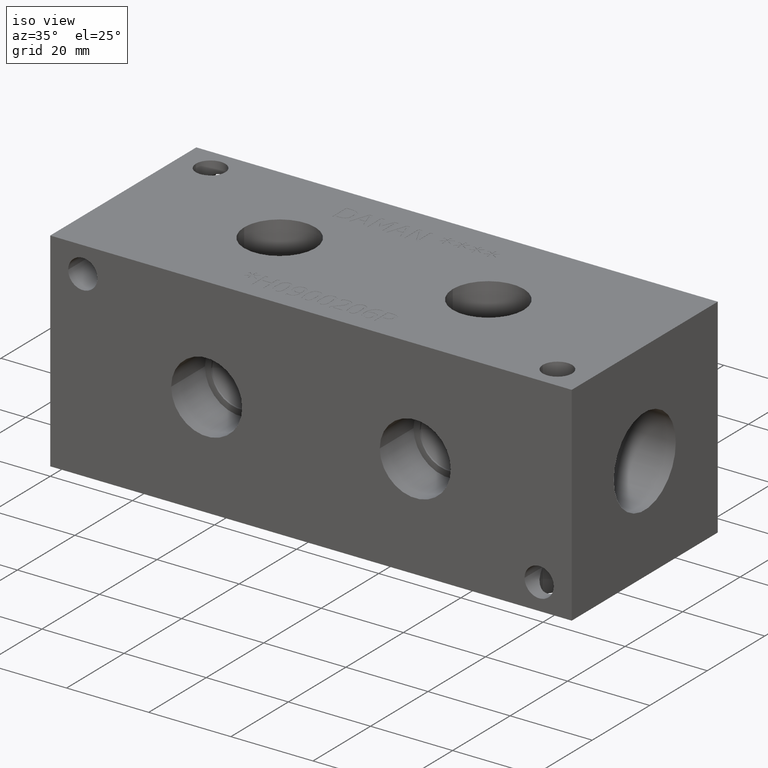
[diagram: clean part render]
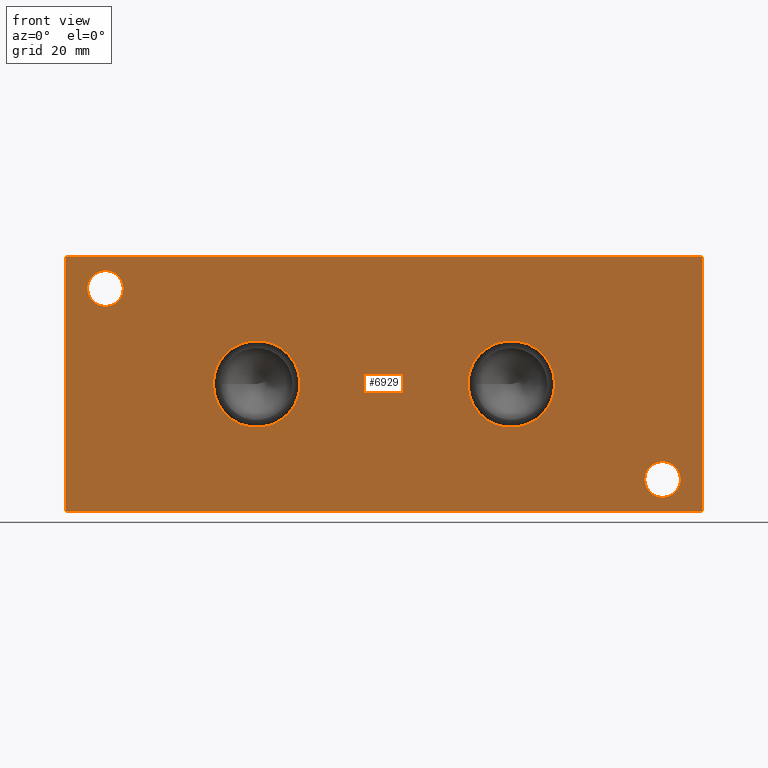
[diagram: tour spotlight — one face highlighted and labeled with its STEP entity id]
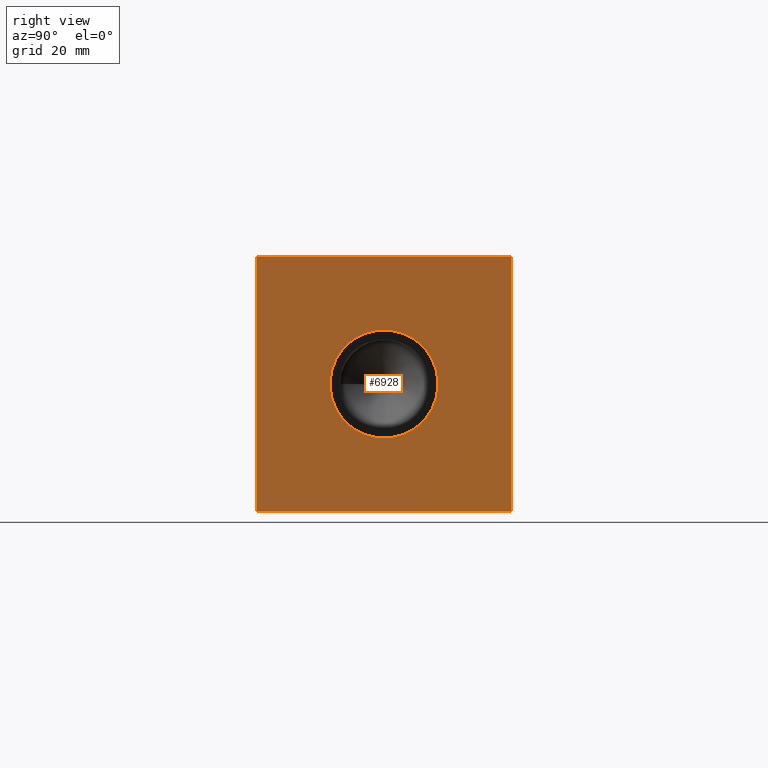
[diagram: tour spotlight — one face highlighted and labeled with its STEP entity id]
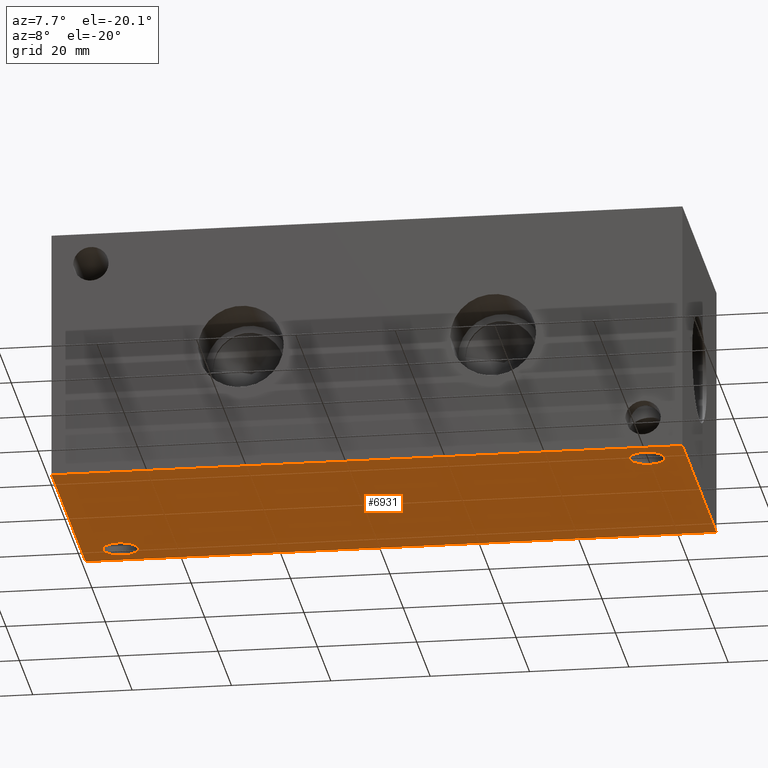
[diagram: tour spotlight — one face highlighted and labeled with its STEP entity id]
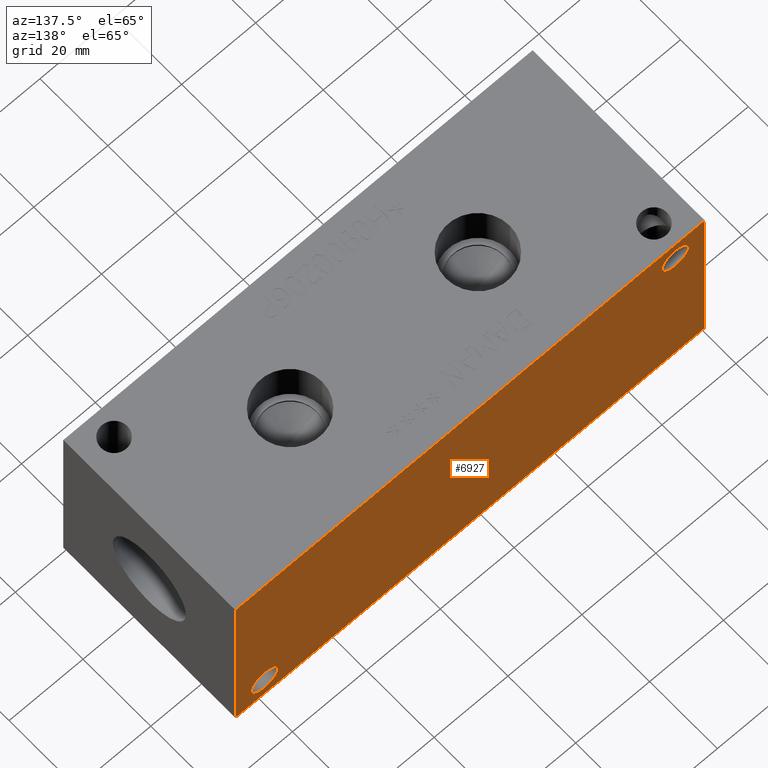
[diagram: tour spotlight — one face highlighted and labeled with its STEP entity id]
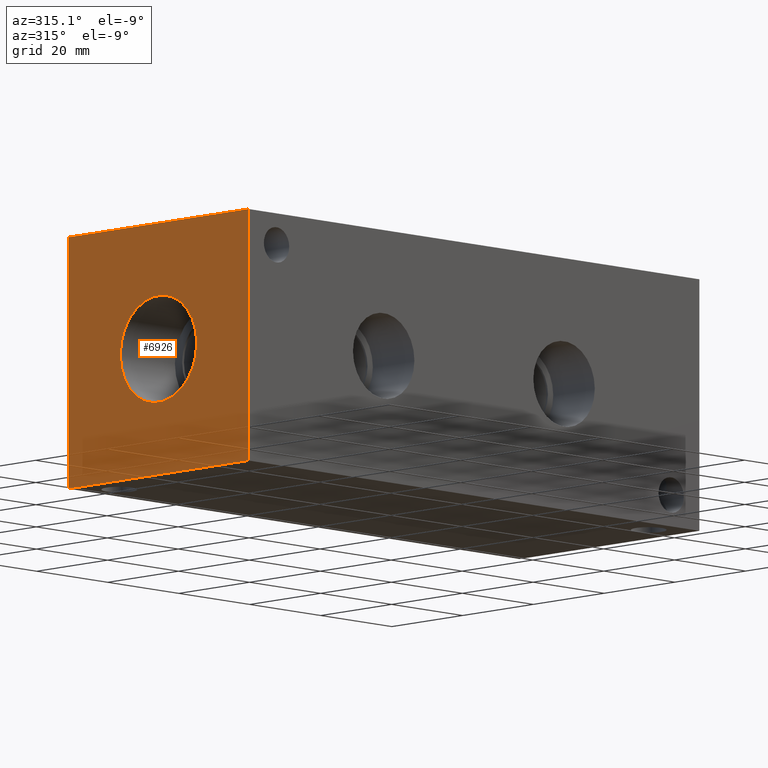
[diagram: tour spotlight — one face highlighted and labeled with its STEP entity id]
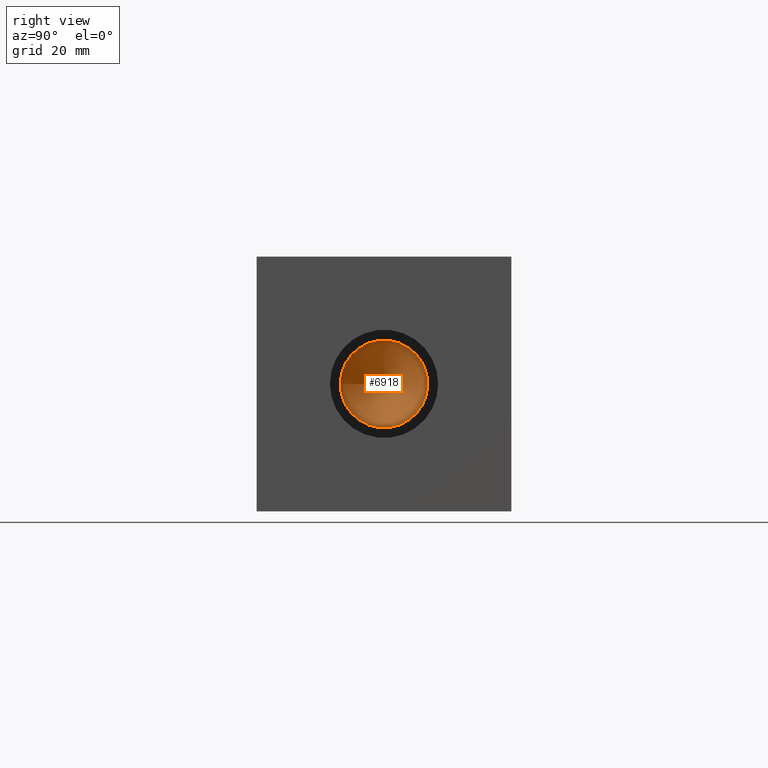
[diagram: tour spotlight — one face highlighted and labeled with its STEP entity id]
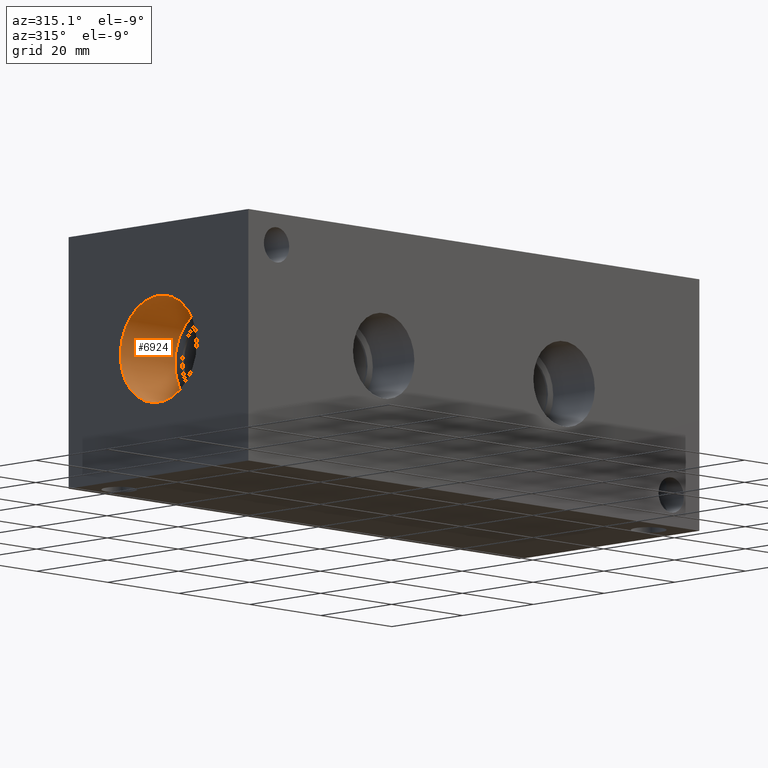
[diagram: tour spotlight — one face highlighted and labeled with its STEP entity id]
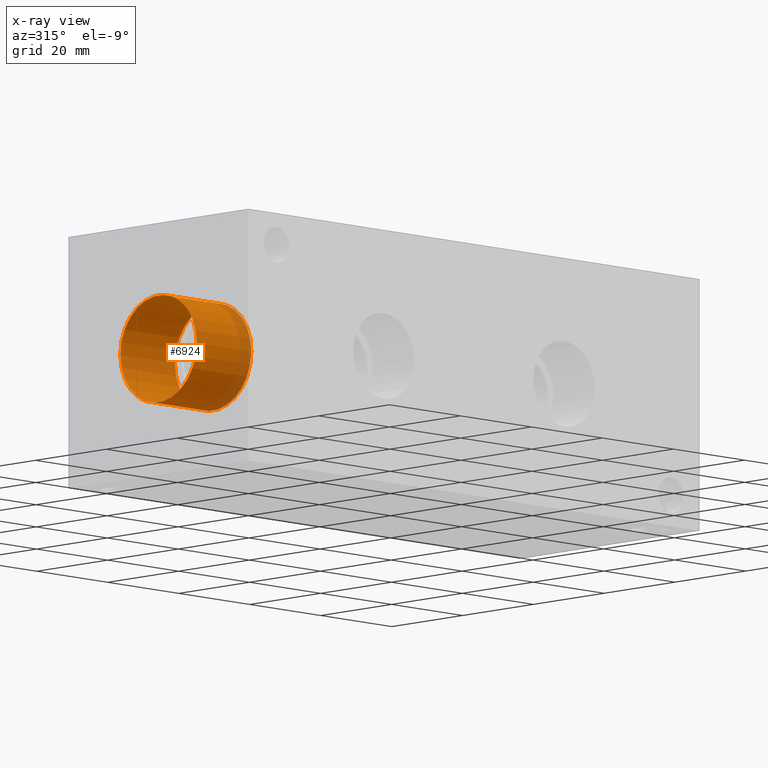
[diagram: x-ray of the same camera — body ghosted, this tour face saturated]
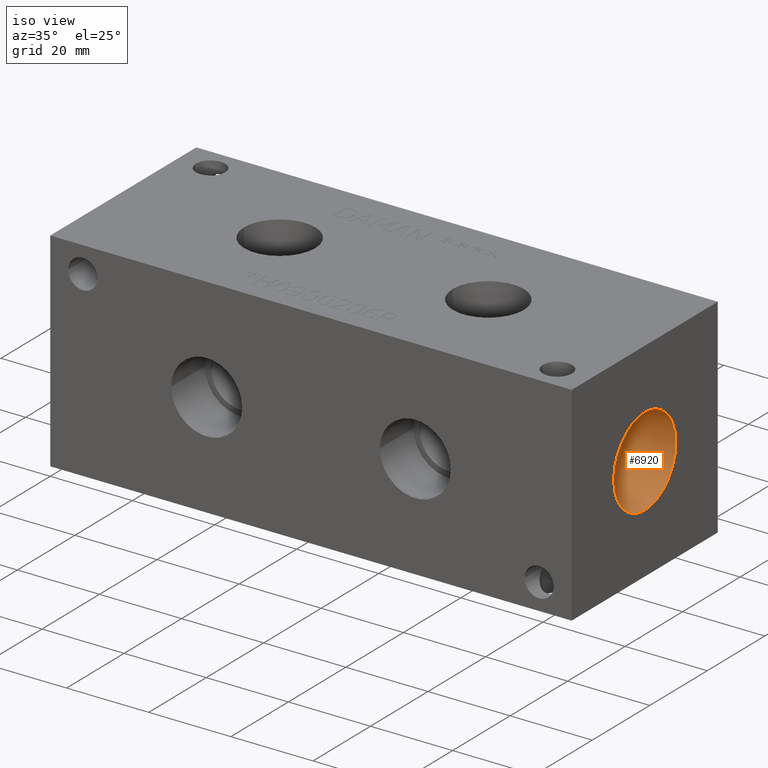
[diagram: tour spotlight — one face highlighted and labeled with its STEP entity id]
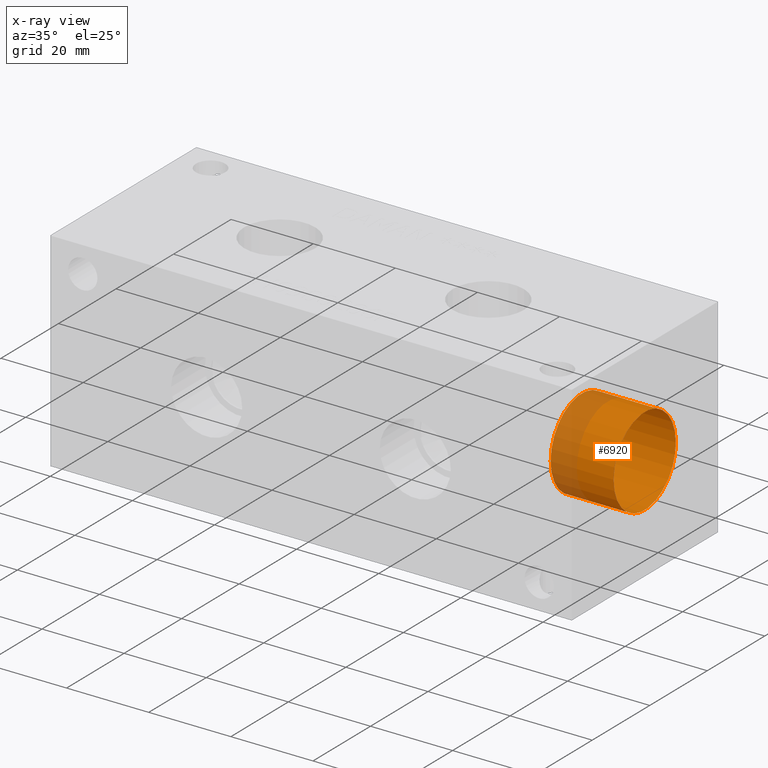
[diagram: x-ray of the same camera — body ghosted, this tour face saturated]
A machine part: a face-by-face anatomy tour. The part has 351 B-rep faces; the first image is the clean iso view, then the 8 largest visible faces are spotlighted one at a time (largest first), each with its STEP entity span.

Face 1 — front view, entity #6929. In plain terms, the highlighted planar face has unit normal (0, -1, 0).
Definition (entity closure, byte-faithful):
#61=CIRCLE('',#7162,8.6487);
#62=CIRCLE('',#7163,8.6487);
#68=CIRCLE('',#7173,8.6487);
#69=CIRCLE('',#7174,8.6487);
#70=CIRCLE('',#7177,3.5687);
#71=CIRCLE('',#7178,3.5687);
#73=CIRCLE('',#7186,3.5687);
#74=CIRCLE('',#7187,3.5687);
#145=FACE_BOUND('',#1106,.T.);
#146=FACE_BOUND('',#1107,.T.);
#147=FACE_BOUND('',#1108,.T.);
#148=FACE_BOUND('',#1109,.T.);
#360=PLANE('',#7243);
#711=FACE_OUTER_BOUND('',#1105,.T.);
#1105=EDGE_LOOP('',(#6143,#6144,#6145,#6146));
#1106=EDGE_LOOP('',(#6147,#6148));
#1107=EDGE_LOOP('',(#6149,#6150));
#1108=EDGE_LOOP('',(#6151,#6152));
#1109=EDGE_LOOP('',(#6153,#6154));
#1363=LINE('',#10809,#2027);
#1771=LINE('',#11911,#2435);
#1776=LINE('',#11920,#2440);
#1777=LINE('',#11922,#2441);
#2027=VECTOR('',#7615,10.);
#2435=VECTOR('',#8495,10.);
#2440=VECTOR('',#8504,10.);
#2441=VECTOR('',#8507,10.);
#2974=VERTEX_POINT('',#10807);
#2975=VERTEX_POINT('',#10808);
#3254=VERTEX_POINT('',#11754);
#3255=VERTEX_POINT('',#11755);
#3262=VERTEX_POINT('',#11776);
#3263=VERTEX_POINT('',#11777);
#3264=VERTEX_POINT('',#11784);
#3265=VERTEX_POINT('',#11785);
#3269=VERTEX_POINT('',#11800);
#3270=VERTEX_POINT('',#11801);
#3305=VERTEX_POINT('',#11909);
#3307=VERTEX_POINT('',#11918);
#3767=EDGE_CURVE('',#2974,#2975,#1363,.T.);
#4178=EDGE_CURVE('',#3254,#3255,#61,.T.);
#4179=EDGE_CURVE('',#3255,#3254,#62,.T.);
#4188=EDGE_CURVE('',#3262,#3263,#68,.T.);
#4189=EDGE_CURVE('',#3263,#3262,#69,.T.);
#4192=EDGE_CURVE('',#3264,#3265,#70,.T.);
#4193=EDGE_CURVE('',#3265,#3264,#71,.T.);
#4201=EDGE_CURVE('',#3269,#3270,#73,.T.);
#4202=EDGE_CURVE('',#3270,#3269,#74,.T.);
#4253=EDGE_CURVE('',#3305,#2974,#1771,.T.);
#4258=EDGE_CURVE('',#3307,#2975,#1776,.T.);
#4259=EDGE_CURVE('',#3305,#3307,#1777,.T.);
#6143=ORIENTED_EDGE('',*,*,#4259,.T.);
#6144=ORIENTED_EDGE('',*,*,#4258,.T.);
#6145=ORIENTED_EDGE('',*,*,#3767,.F.);
#6146=ORIENTED_EDGE('',*,*,#4253,.F.);
#6147=ORIENTED_EDGE('',*,*,#4178,.T.);
#6148=ORIENTED_EDGE('',*,*,#4179,.T.);
#6149=ORIENTED_EDGE('',*,*,#4188,.T.);
#6150=ORIENTED_EDGE('',*,*,#4189,.T.);
#6151=ORIENTED_EDGE('',*,*,#4192,.T.);
#6152=ORIENTED_EDGE('',*,*,#4193,.T.);
#6153=ORIENTED_EDGE('',*,*,#4201,.T.);
#6154=ORIENTED_EDGE('',*,*,#4202,.T.);
#6929=ADVANCED_FACE('',(#711,#145,#146,#147,#148),#360,.T.);
#7162=AXIS2_PLACEMENT_3D('',#11756,#8311,#8312);
#7163=AXIS2_PLACEMENT_3D('',#11757,#8313,#8314);
#7173=AXIS2_PLACEMENT_3D('',#11778,#8336,#8337);
#7174=AXIS2_PLACEMENT_3D('',#11779,#8338,#8339);
#7177=AXIS2_PLACEMENT_3D('',#11786,#8346,#8347);
#7178=AXIS2_PLACEMENT_3D('',#11787,#8348,#8349);
#7186=AXIS2_PLACEMENT_3D('',#11802,#8366,#8367);
#7187=AXIS2_PLACEMENT_3D('',#11803,#8368,#8369);
#7243=AXIS2_PLACEMENT_3D('',#11921,#8505,#8506);
#7615=DIRECTION('',(1.,0.,0.));
#8311=DIRECTION('center_axis',(0.,1.,0.));
#8312=DIRECTION('ref_axis',(1.,0.,0.));
#8313=DIRECTION('center_axis',(0.,1.,0.));
#8314=DIRECTION('ref_axis',(1.,0.,0.));
#8336=DIRECTION('center_axis',(0.,1.,0.));
#8337=DIRECTION('ref_axis',(1.,0.,0.));
#8338=DIRECTION('center_axis',(0.,1.,0.));
#8339=DIRECTION('ref_axis',(1.,0.,0.));
#8346=DIRECTION('center_axis',(0.,1.,0.));
#8347=DIRECTION('ref_axis',(1.,0.,0.));
#8348=DIRECTION('center_axis',(0.,1.,0.));
#8349=DIRECTION('ref_axis',(1.,0.,0.));
#8366=DIRECTION('center_axis',(0.,1.,0.));
#8367=DIRECTION('ref_axis',(1.,0.,0.));
#8368=DIRECTION('center_axis',(0.,1.,0.));
#8369=DIRECTION('ref_axis',(1.,0.,0.));
#8495=DIRECTION('',(0.,0.,1.));
#8504=DIRECTION('',(0.,0.,1.));
#8505=DIRECTION('center_axis',(0.,-1.,0.));
#8506=DIRECTION('ref_axis',(1.,0.,0.));
#8507=DIRECTION('',(1.,0.,0.));
#10807=CARTESIAN_POINT('',(0.,0.,50.8));
#10808=CARTESIAN_POINT('',(127.,0.,50.8));
#10809=CARTESIAN_POINT('',(0.,0.,50.8));
#11754=CARTESIAN_POINT('',(46.7487,0.,25.4));
#11755=CARTESIAN_POINT('',(29.4513,0.,25.4));
#11756=CARTESIAN_POINT('Origin',(38.1,0.,25.4));
#11757=CARTESIAN_POINT('Origin',(38.1,0.,25.4));
#11776=CARTESIAN_POINT('',(97.5487,0.,25.4));
#11777=CARTESIAN_POINT('',(80.2513,0.,25.4));
#11778=CARTESIAN_POINT('Origin',(88.9,0.,25.4));
#11779=CARTESIAN_POINT('Origin',(88.9,0.,25.4));
#11784=CARTESIAN_POINT('',(11.4935,0.,44.45));
#11785=CARTESIAN_POINT('',(4.3561,-1.77635683940025E-14,44.45));
#11786=CARTESIAN_POINT('Origin',(7.9248,0.,44.45));
#11787=CARTESIAN_POINT('Origin',(7.9248,0.,44.45));
#11800=CARTESIAN_POINT('',(122.6439,0.,6.35));
#11801=CARTESIAN_POINT('',(115.5065,-1.77635683940025E-14,6.35));
#11802=CARTESIAN_POINT('Origin',(119.0752,0.,6.35));
#11803=CARTESIAN_POINT('Origin',(119.0752,0.,6.35));
#11909=CARTESIAN_POINT('',(0.,0.,0.));
#11911=CARTESIAN_POINT('',(0.,0.,0.));
#11918=CARTESIAN_POINT('',(127.,0.,0.));
#11920=CARTESIAN_POINT('',(127.,0.,0.));
#11921=CARTESIAN_POINT('Origin',(0.,0.,0.));
#11922=CARTESIAN_POINT('',(0.,0.,0.));

Face 2 — right view, entity #6928. In plain terms, the highlighted planar face has unit normal (1, 0, 0).
Definition (entity closure, byte-faithful):
#93=CIRCLE('',#7226,10.795);
#94=CIRCLE('',#7227,10.795);
#144=FACE_BOUND('',#1104,.T.);
#359=PLANE('',#7242);
#710=FACE_OUTER_BOUND('',#1103,.T.);
#1103=EDGE_LOOP('',(#6137,#6138,#6139,#6140));
#1104=EDGE_LOOP('',(#6141,#6142));
#1364=LINE('',#10811,#2028);
#1774=LINE('',#11916,#2438);
#1775=LINE('',#11919,#2439);
#1776=LINE('',#11920,#2440);
#2028=VECTOR('',#7616,10.);
#2438=VECTOR('',#8500,10.);
#2439=VECTOR('',#8503,10.);
#2440=VECTOR('',#8504,10.);
#2975=VERTEX_POINT('',#10808);
#2976=VERTEX_POINT('',#10810);
#3294=VERTEX_POINT('',#11878);
#3295=VERTEX_POINT('',#11879);
#3306=VERTEX_POINT('',#11914);
#3307=VERTEX_POINT('',#11918);
#3768=EDGE_CURVE('',#2975,#2976,#1364,.T.);
#4238=EDGE_CURVE('',#3294,#3295,#93,.T.);
#4239=EDGE_CURVE('',#3295,#3294,#94,.T.);
#4256=EDGE_CURVE('',#3306,#2976,#1774,.T.);
#4257=EDGE_CURVE('',#3307,#3306,#1775,.T.);
#4258=EDGE_CURVE('',#3307,#2975,#1776,.T.);
#6137=ORIENTED_EDGE('',*,*,#4257,.T.);
#6138=ORIENTED_EDGE('',*,*,#4256,.T.);
#6139=ORIENTED_EDGE('',*,*,#3768,.F.);
#6140=ORIENTED_EDGE('',*,*,#4258,.F.);
#6141=ORIENTED_EDGE('',*,*,#4238,.T.);
#6142=ORIENTED_EDGE('',*,*,#4239,.T.);
#6928=ADVANCED_FACE('',(#710,#144),#359,.T.);
#7226=AXIS2_PLACEMENT_3D('',#11880,#8459,#8460);
#7227=AXIS2_PLACEMENT_3D('',#11881,#8461,#8462);
#7242=AXIS2_PLACEMENT_3D('',#11917,#8501,#8502);
#7616=DIRECTION('',(0.,1.,0.));
#8459=DIRECTION('center_axis',(-1.,0.,0.));
#8460=DIRECTION('ref_axis',(0.,1.,0.));
#8461=DIRECTION('center_axis',(-1.,0.,0.));
#8462=DIRECTION('ref_axis',(0.,1.,0.));
#8500=DIRECTION('',(0.,0.,1.));
#8501=DIRECTION('center_axis',(1.,0.,0.));
#8502=DIRECTION('ref_axis',(0.,1.,0.));
#8503=DIRECTION('',(0.,1.,0.));
#8504=DIRECTION('',(0.,0.,1.));
#10808=CARTESIAN_POINT('',(127.,0.,50.8));
#10810=CARTESIAN_POINT('',(127.,50.8,50.8));
#10811=CARTESIAN_POINT('',(127.,0.,50.8));
#11878=CARTESIAN_POINT('',(127.,36.195,25.4));
#11879=CARTESIAN_POINT('',(127.,14.605,25.4));
#11880=CARTESIAN_POINT('Origin',(127.,25.4,25.4));
#11881=CARTESIAN_POINT('Origin',(127.,25.4,25.4));
#11914=CARTESIAN_POINT('',(127.,50.8,0.));
#11916=CARTESIAN_POINT('',(127.,50.8,0.));
#11917=CARTESIAN_POINT('Origin',(127.,0.,0.));
#11918=CARTESIAN_POINT('',(127.,0.,0.));
#11919=CARTESIAN_POINT('',(127.,0.,0.));
#11920=CARTESIAN_POINT('',(127.,0.,0.));

Face 3 — auxiliary view, entity #6931. In plain terms, the highlighted planar face has unit normal (0, 0, 1).
Definition (entity closure, byte-faithful):
#76=CIRCLE('',#7197,3.5687);
#77=CIRCLE('',#7199,3.5687);
#149=FACE_BOUND('',#1112,.T.);
#150=FACE_BOUND('',#1113,.T.);
#362=PLANE('',#7245);
#713=FACE_OUTER_BOUND('',#1111,.T.);
#1111=EDGE_LOOP('',(#6158,#6159,#6160,#6161));
#1112=EDGE_LOOP('',(#6162));
#1113=EDGE_LOOP('',(#6163));
#1770=LINE('',#11910,#2434);
#1773=LINE('',#11915,#2437);
#1775=LINE('',#11919,#2439);
#1777=LINE('',#11922,#2441);
#2434=VECTOR('',#8494,10.);
#2437=VECTOR('',#8499,10.);
#2439=VECTOR('',#8503,10.);
#2441=VECTOR('',#8507,10.);
#3274=VERTEX_POINT('',#11820);
#3275=VERTEX_POINT('',#11824);
#3304=VERTEX_POINT('',#11908);
#3305=VERTEX_POINT('',#11909);
#3306=VERTEX_POINT('',#11914);
#3307=VERTEX_POINT('',#11918);
#4213=EDGE_CURVE('',#3274,#3274,#76,.T.);
#4215=EDGE_CURVE('',#3275,#3275,#77,.T.);
#4252=EDGE_CURVE('',#3304,#3305,#1770,.T.);
#4255=EDGE_CURVE('',#3306,#3304,#1773,.T.);
#4257=EDGE_CURVE('',#3307,#3306,#1775,.T.);
#4259=EDGE_CURVE('',#3305,#3307,#1777,.T.);
#6158=ORIENTED_EDGE('',*,*,#4259,.F.);
#6159=ORIENTED_EDGE('',*,*,#4252,.F.);
#6160=ORIENTED_EDGE('',*,*,#4255,.F.);
#6161=ORIENTED_EDGE('',*,*,#4257,.F.);
#6162=ORIENTED_EDGE('',*,*,#4213,.T.);
#6163=ORIENTED_EDGE('',*,*,#4215,.T.);
#6931=ADVANCED_FACE('',(#713,#149,#150),#362,.F.);
#7197=AXIS2_PLACEMENT_3D('',#11822,#8393,#8394);
#7199=AXIS2_PLACEMENT_3D('',#11826,#8398,#8399);
#7245=AXIS2_PLACEMENT_3D('',#11924,#8510,#8511);
#8393=DIRECTION('center_axis',(0.,0.,1.));
#8394=DIRECTION('ref_axis',(1.,0.,0.));
#8398=DIRECTION('center_axis',(0.,0.,1.));
#8399=DIRECTION('ref_axis',(1.,0.,0.));
#8494=DIRECTION('',(0.,-1.,0.));
#8499=DIRECTION('',(-1.,0.,0.));
#8503=DIRECTION('',(0.,1.,0.));
#8507=DIRECTION('',(1.,0.,0.));
#8510=DIRECTION('center_axis',(0.,0.,1.));
#8511=DIRECTION('ref_axis',(1.,0.,0.));
#11820=CARTESIAN_POINT('',(4.3561,44.45,0.));
#11822=CARTESIAN_POINT('Origin',(7.9248,44.45,0.));
#11824=CARTESIAN_POINT('',(115.5065,6.35,0.));
#11826=CARTESIAN_POINT('Origin',(119.0752,6.35,0.));
#11908=CARTESIAN_POINT('',(0.,50.8,0.));
#11909=CARTESIAN_POINT('',(0.,0.,0.));
#11910=CARTESIAN_POINT('',(0.,50.8,0.));
#11914=CARTESIAN_POINT('',(127.,50.8,0.));
#11915=CARTESIAN_POINT('',(127.,50.8,0.));
#11918=CARTESIAN_POINT('',(127.,0.,0.));
#11919=CARTESIAN_POINT('',(127.,0.,0.));
#11922=CARTESIAN_POINT('',(0.,0.,0.));
#11924=CARTESIAN_POINT('Origin',(63.5,25.4,0.));

Face 4 — auxiliary view, entity #6927. In plain terms, the highlighted planar face has unit normal (0, 1, 0).
Definition (entity closure, byte-faithful):
#72=CIRCLE('',#7184,3.5687);
#75=CIRCLE('',#7193,3.5687);
#142=FACE_BOUND('',#1101,.T.);
#143=FACE_BOUND('',#1102,.T.);
#358=PLANE('',#7241);
#709=FACE_OUTER_BOUND('',#1100,.T.);
#1100=EDGE_LOOP('',(#6131,#6132,#6133,#6134));
#1101=EDGE_LOOP('',(#6135));
#1102=EDGE_LOOP('',(#6136));
#1365=LINE('',#10813,#2029);
#1772=LINE('',#11912,#2436);
#1773=LINE('',#11915,#2437);
#1774=LINE('',#11916,#2438);
#2029=VECTOR('',#7617,10.);
#2436=VECTOR('',#8496,10.);
#2437=VECTOR('',#8499,10.);
#2438=VECTOR('',#8500,10.);
#2976=VERTEX_POINT('',#10810);
#2977=VERTEX_POINT('',#10812);
#3268=VERTEX_POINT('',#11796);
#3273=VERTEX_POINT('',#11812);
#3304=VERTEX_POINT('',#11908);
#3306=VERTEX_POINT('',#11914);
#3769=EDGE_CURVE('',#2976,#2977,#1365,.T.);
#4200=EDGE_CURVE('',#3268,#3268,#72,.T.);
#4209=EDGE_CURVE('',#3273,#3273,#75,.T.);
#4254=EDGE_CURVE('',#3304,#2977,#1772,.T.);
#4255=EDGE_CURVE('',#3306,#3304,#1773,.T.);
#4256=EDGE_CURVE('',#3306,#2976,#1774,.T.);
#6131=ORIENTED_EDGE('',*,*,#4255,.T.);
#6132=ORIENTED_EDGE('',*,*,#4254,.T.);
#6133=ORIENTED_EDGE('',*,*,#3769,.F.);
#6134=ORIENTED_EDGE('',*,*,#4256,.F.);
#6135=ORIENTED_EDGE('',*,*,#4200,.T.);
#6136=ORIENTED_EDGE('',*,*,#4209,.T.);
#6927=ADVANCED_FACE('',(#709,#142,#143),#358,.T.);
#7184=AXIS2_PLACEMENT_3D('',#11798,#8362,#8363);
#7193=AXIS2_PLACEMENT_3D('',#11814,#8382,#8383);
#7241=AXIS2_PLACEMENT_3D('',#11913,#8497,#8498);
#7617=DIRECTION('',(-1.,0.,0.));
#8362=DIRECTION('center_axis',(0.,-1.,0.));
#8363=DIRECTION('ref_axis',(1.,0.,0.));
#8382=DIRECTION('center_axis',(0.,-1.,0.));
#8383=DIRECTION('ref_axis',(1.,0.,0.));
#8496=DIRECTION('',(0.,0.,1.));
#8497=DIRECTION('center_axis',(0.,1.,0.));
#8498=DIRECTION('ref_axis',(-1.,0.,0.));
#8499=DIRECTION('',(-1.,0.,0.));
#8500=DIRECTION('',(0.,0.,1.));
#10810=CARTESIAN_POINT('',(127.,50.8,50.8));
#10812=CARTESIAN_POINT('',(0.,50.8,50.8));
#10813=CARTESIAN_POINT('',(127.,50.8,50.8));
#11796=CARTESIAN_POINT('',(4.3561,50.8,44.45));
#11798=CARTESIAN_POINT('Origin',(7.9248,50.8,44.45));
#11812=CARTESIAN_POINT('',(115.5065,50.8,6.35));
#11814=CARTESIAN_POINT('Origin',(119.0752,50.8,6.35));
#11908=CARTESIAN_POINT('',(0.,50.8,0.));
#11912=CARTESIAN_POINT('',(0.,50.8,0.));
#11913=CARTESIAN_POINT('Origin',(127.,50.8,0.));
#11914=CARTESIAN_POINT('',(127.,50.8,0.));
#11915=CARTESIAN_POINT('',(127.,50.8,0.));
#11916=CARTESIAN_POINT('',(127.,50.8,0.));

Face 5 — auxiliary view, entity #6926. In plain terms, the highlighted planar face has unit normal (-1, 0, 0).
Definition (entity closure, byte-faithful):
#100=CIRCLE('',#7237,10.795);
#101=CIRCLE('',#7238,10.795);
#141=FACE_BOUND('',#1099,.T.);
#357=PLANE('',#7240);
#708=FACE_OUTER_BOUND('',#1098,.T.);
#1098=EDGE_LOOP('',(#6125,#6126,#6127,#6128));
#1099=EDGE_LOOP('',(#6129,#6130));
#1366=LINE('',#10814,#2030);
#1770=LINE('',#11910,#2434);
#1771=LINE('',#11911,#2435);
#1772=LINE('',#11912,#2436);
#2030=VECTOR('',#7618,10.);
#2434=VECTOR('',#8494,10.);
#2435=VECTOR('',#8495,10.);
#2436=VECTOR('',#8496,10.);
#2974=VERTEX_POINT('',#10807);
#2977=VERTEX_POINT('',#10812);
#3302=VERTEX_POINT('',#11900);
#3303=VERTEX_POINT('',#11901);
#3304=VERTEX_POINT('',#11908);
#3305=VERTEX_POINT('',#11909);
#3770=EDGE_CURVE('',#2977,#2974,#1366,.T.);
#4248=EDGE_CURVE('',#3302,#3303,#100,.T.);
#4249=EDGE_CURVE('',#3303,#3302,#101,.T.);
#4252=EDGE_CURVE('',#3304,#3305,#1770,.T.);
#4253=EDGE_CURVE('',#3305,#2974,#1771,.T.);
#4254=EDGE_CURVE('',#3304,#2977,#1772,.T.);
#6125=ORIENTED_EDGE('',*,*,#4252,.T.);
#6126=ORIENTED_EDGE('',*,*,#4253,.T.);
#6127=ORIENTED_EDGE('',*,*,#3770,.F.);
#6128=ORIENTED_EDGE('',*,*,#4254,.F.);
#6129=ORIENTED_EDGE('',*,*,#4248,.T.);
#6130=ORIENTED_EDGE('',*,*,#4249,.T.);
#6926=ADVANCED_FACE('',(#708,#141),#357,.T.);
#7237=AXIS2_PLACEMENT_3D('',#11902,#8484,#8485);
#7238=AXIS2_PLACEMENT_3D('',#11903,#8486,#8487);
#7240=AXIS2_PLACEMENT_3D('',#11907,#8492,#8493);
#7618=DIRECTION('',(0.,-1.,0.));
#8484=DIRECTION('center_axis',(1.,0.,0.));
#8485=DIRECTION('ref_axis',(0.,1.,0.));
#8486=DIRECTION('center_axis',(1.,0.,0.));
#8487=DIRECTION('ref_axis',(0.,1.,0.));
#8492=DIRECTION('center_axis',(-1.,0.,0.));
#8493=DIRECTION('ref_axis',(0.,-1.,0.));
#8494=DIRECTION('',(0.,-1.,0.));
#8495=DIRECTION('',(0.,0.,1.));
#8496=DIRECTION('',(0.,0.,1.));
#10807=CARTESIAN_POINT('',(0.,0.,50.8));
#10812=CARTESIAN_POINT('',(0.,50.8,50.8));
#10814=CARTESIAN_POINT('',(0.,50.8,50.8));
#11900=CARTESIAN_POINT('',(0.,36.195,25.4));
#11901=CARTESIAN_POINT('',(0.,14.605,25.4));
#11902=CARTESIAN_POINT('Origin',(0.,25.4,25.4));
#11903=CARTESIAN_POINT('Origin',(0.,25.4,25.4));
#11907=CARTESIAN_POINT('Origin',(0.,50.8,0.));
#11908=CARTESIAN_POINT('',(0.,50.8,0.));
#11909=CARTESIAN_POINT('',(0.,0.,0.));
#11910=CARTESIAN_POINT('',(0.,50.8,0.));
#11911=CARTESIAN_POINT('',(0.,0.,0.));
#11912=CARTESIAN_POINT('',(0.,50.8,0.));

Face 6 — right view, entity #6918. In plain terms, the highlighted conical surface has half-angle 60 deg.
Definition (entity closure, byte-faithful):
#46=CONICAL_SURFACE('',#7218,4.3688,1.0471975511966);
#88=CIRCLE('',#7219,8.7376);
#89=CIRCLE('',#7220,8.7376);
#700=FACE_OUTER_BOUND('',#1088,.T.);
#1088=EDGE_LOOP('',(#6089,#6090,#6091,#6092));
#1764=LINE('',#11868,#2428);
#2428=VECTOR('',#8446,4.3688);
#3288=VERTEX_POINT('',#11864);
#3289=VERTEX_POINT('',#11865);
#3290=VERTEX_POINT('',#11867);
#4232=EDGE_CURVE('',#3288,#3289,#88,.T.);
#4233=EDGE_CURVE('',#3289,#3290,#1764,.T.);
#4234=EDGE_CURVE('',#3289,#3288,#89,.T.);
#6089=ORIENTED_EDGE('',*,*,#4232,.T.);
#6090=ORIENTED_EDGE('',*,*,#4233,.T.);
#6091=ORIENTED_EDGE('',*,*,#4233,.F.);
#6092=ORIENTED_EDGE('',*,*,#4234,.T.);
#6918=ADVANCED_FACE('',(#700),#46,.F.);
#7218=AXIS2_PLACEMENT_3D('',#11863,#8442,#8443);
#7219=AXIS2_PLACEMENT_3D('',#11866,#8444,#8445);
#7220=AXIS2_PLACEMENT_3D('',#11869,#8447,#8448);
#8442=DIRECTION('center_axis',(1.,0.,0.));
#8443=DIRECTION('ref_axis',(0.,1.,0.));
#8444=DIRECTION('center_axis',(1.,0.,0.));
#8445=DIRECTION('ref_axis',(0.,1.,0.));
#8446=DIRECTION('',(-0.5,0.866025403784439,1.06057523872491E-16));
#8447=DIRECTION('center_axis',(1.,0.,0.));
#8448=DIRECTION('ref_axis',(0.,1.,0.));
#11863=CARTESIAN_POINT('Origin',(108.606202143964,25.4,25.4));
#11864=CARTESIAN_POINT('',(111.12853,34.1376,25.4));
#11865=CARTESIAN_POINT('',(111.12853,16.6624,25.4));
#11866=CARTESIAN_POINT('Origin',(111.12853,25.4,25.4));
#11867=CARTESIAN_POINT('',(106.083874287929,25.4,25.4));
#11868=CARTESIAN_POINT('',(108.606202143964,21.0312,25.4));
#11869=CARTESIAN_POINT('Origin',(111.12853,25.4,25.4));

Face 7 — auxiliary view, entity #6924. An x-ray twin of the same camera follows (body ghosted, this face saturated) — the face is partly hidden behind the body. In plain terms, the highlighted cylindrical surface (bore or boss wall) has radius 10.795 mm, axis along (-1, 0, 0).
Definition (entity closure, byte-faithful):
#40=CYLINDRICAL_SURFACE('',#7236,10.795);
#97=CIRCLE('',#7233,10.795);
#98=CIRCLE('',#7234,10.795);
#100=CIRCLE('',#7237,10.795);
#101=CIRCLE('',#7238,10.795);
#706=FACE_OUTER_BOUND('',#1096,.T.);
#1096=EDGE_LOOP('',(#6114,#6115,#6116,#6117,#6118,#6119));
#1768=LINE('',#11904,#2432);
#2432=VECTOR('',#8488,10.795);
#3299=VERTEX_POINT('',#11893);
#3300=VERTEX_POINT('',#11894);
#3302=VERTEX_POINT('',#11900);
#3303=VERTEX_POINT('',#11901);
#4245=EDGE_CURVE('',#3299,#3300,#97,.T.);
#4246=EDGE_CURVE('',#3300,#3299,#98,.T.);
#4248=EDGE_CURVE('',#3302,#3303,#100,.T.);
#4249=EDGE_CURVE('',#3303,#3302,#101,.T.);
#4250=EDGE_CURVE('',#3303,#3300,#1768,.T.);
#6114=ORIENTED_EDGE('',*,*,#4248,.F.);
#6115=ORIENTED_EDGE('',*,*,#4249,.F.);
#6116=ORIENTED_EDGE('',*,*,#4250,.T.);
#6117=ORIENTED_EDGE('',*,*,#4245,.F.);
#6118=ORIENTED_EDGE('',*,*,#4246,.F.);
#6119=ORIENTED_EDGE('',*,*,#4250,.F.);
#6924=ADVANCED_FACE('',(#706),#40,.F.);
#7233=AXIS2_PLACEMENT_3D('',#11895,#8476,#8477);
#7234=AXIS2_PLACEMENT_3D('',#11896,#8478,#8479);
#7236=AXIS2_PLACEMENT_3D('',#11899,#8482,#8483);
#7237=AXIS2_PLACEMENT_3D('',#11902,#8484,#8485);
#7238=AXIS2_PLACEMENT_3D('',#11903,#8486,#8487);
#8476=DIRECTION('center_axis',(-1.,0.,0.));
#8477=DIRECTION('ref_axis',(0.,1.,0.));
#8478=DIRECTION('center_axis',(-1.,0.,0.));
#8479=DIRECTION('ref_axis',(0.,1.,0.));
#8482=DIRECTION('center_axis',(-1.,0.,0.));
#8483=DIRECTION('ref_axis',(0.,1.,0.));
#8484=DIRECTION('center_axis',(1.,0.,0.));
#8485=DIRECTION('ref_axis',(0.,1.,0.));
#8486=DIRECTION('center_axis',(1.,0.,0.));
#8487=DIRECTION('ref_axis',(0.,1.,0.));
#8488=DIRECTION('',(1.,0.,0.));
#11893=CARTESIAN_POINT('',(15.367,36.195,25.4));
#11894=CARTESIAN_POINT('',(15.367,14.605,25.4));
#11895=CARTESIAN_POINT('Origin',(15.367,25.4,25.4));
#11896=CARTESIAN_POINT('Origin',(15.367,25.4,25.4));
#11899=CARTESIAN_POINT('Origin',(7.6835,25.4,25.4));
#11900=CARTESIAN_POINT('',(0.,36.195,25.4));
#11901=CARTESIAN_POINT('',(0.,14.605,25.4));
#11902=CARTESIAN_POINT('Origin',(0.,25.4,25.4));
#11903=CARTESIAN_POINT('Origin',(0.,25.4,25.4));
#11904=CARTESIAN_POINT('',(7.6835,14.605,25.4));

Face 8 — iso view, entity #6920. An x-ray twin of the same camera follows (body ghosted, this face saturated) — the face is partly hidden behind the body. In plain terms, the highlighted cylindrical surface (bore or boss wall) has radius 10.795 mm, axis along (1, 0, 0).
Definition (entity closure, byte-faithful):
#38=CYLINDRICAL_SURFACE('',#7225,10.795);
#90=CIRCLE('',#7222,10.795);
#91=CIRCLE('',#7223,10.795);
#93=CIRCLE('',#7226,10.795);
#94=CIRCLE('',#7227,10.795);
#702=FACE_OUTER_BOUND('',#1091,.T.);
#1091=EDGE_LOOP('',(#6096,#6097,#6098,#6099,#6100,#6101));
#1765=LINE('',#11882,#2429);
#2429=VECTOR('',#8463,10.795);
#3291=VERTEX_POINT('',#11871);
#3292=VERTEX_POINT('',#11872);
#3294=VERTEX_POINT('',#11878);
#3295=VERTEX_POINT('',#11879);
#4235=EDGE_CURVE('',#3291,#3292,#90,.T.);
#4236=EDGE_CURVE('',#3292,#3291,#91,.T.);
#4238=EDGE_CURVE('',#3294,#3295,#93,.T.);
#4239=EDGE_CURVE('',#3295,#3294,#94,.T.);
#4240=EDGE_CURVE('',#3295,#3292,#1765,.T.);
#6096=ORIENTED_EDGE('',*,*,#4238,.F.);
#6097=ORIENTED_EDGE('',*,*,#4239,.F.);
#6098=ORIENTED_EDGE('',*,*,#4240,.T.);
#6099=ORIENTED_EDGE('',*,*,#4235,.F.);
#6100=ORIENTED_EDGE('',*,*,#4236,.F.);
#6101=ORIENTED_EDGE('',*,*,#4240,.F.);
#6920=ADVANCED_FACE('',(#702),#38,.F.);
#7222=AXIS2_PLACEMENT_3D('',#11873,#8451,#8452);
#7223=AXIS2_PLACEMENT_3D('',#11874,#8453,#8454);
#7225=AXIS2_PLACEMENT_3D('',#11877,#8457,#8458);
#7226=AXIS2_PLACEMENT_3D('',#11880,#8459,#8460);
#7227=AXIS2_PLACEMENT_3D('',#11881,#8461,#8462);
#8451=DIRECTION('center_axis',(1.,0.,0.));
#8452=DIRECTION('ref_axis',(0.,1.,0.));
#8453=DIRECTION('center_axis',(1.,0.,0.));
#8454=DIRECTION('ref_axis',(0.,1.,0.));
#8457=DIRECTION('center_axis',(1.,0.,0.));
#8458=DIRECTION('ref_axis',(0.,1.,0.));
#8459=DIRECTION('center_axis',(-1.,0.,0.));
#8460=DIRECTION('ref_axis',(0.,1.,0.));
#8461=DIRECTION('center_axis',(-1.,0.,0.));
#8462=DIRECTION('ref_axis',(0.,1.,0.));
#8463=DIRECTION('',(-1.,0.,0.));
#11871=CARTESIAN_POINT('',(111.633,36.195,25.4));
#11872=CARTESIAN_POINT('',(111.633,14.605,25.4));
#11873=CARTESIAN_POINT('Origin',(111.633,25.4,25.4));
#11874=CARTESIAN_POINT('Origin',(111.633,25.4,25.4));
#11877=CARTESIAN_POINT('Origin',(119.3165,25.4,25.4));
#11878=CARTESIAN_POINT('',(127.,36.195,25.4));
#11879=CARTESIAN_POINT('',(127.,14.605,25.4));
#11880=CARTESIAN_POINT('Origin',(127.,25.4,25.4));
#11881=CARTESIAN_POINT('Origin',(127.,25.4,25.4));
#11882=CARTESIAN_POINT('',(119.3165,14.605,25.4));